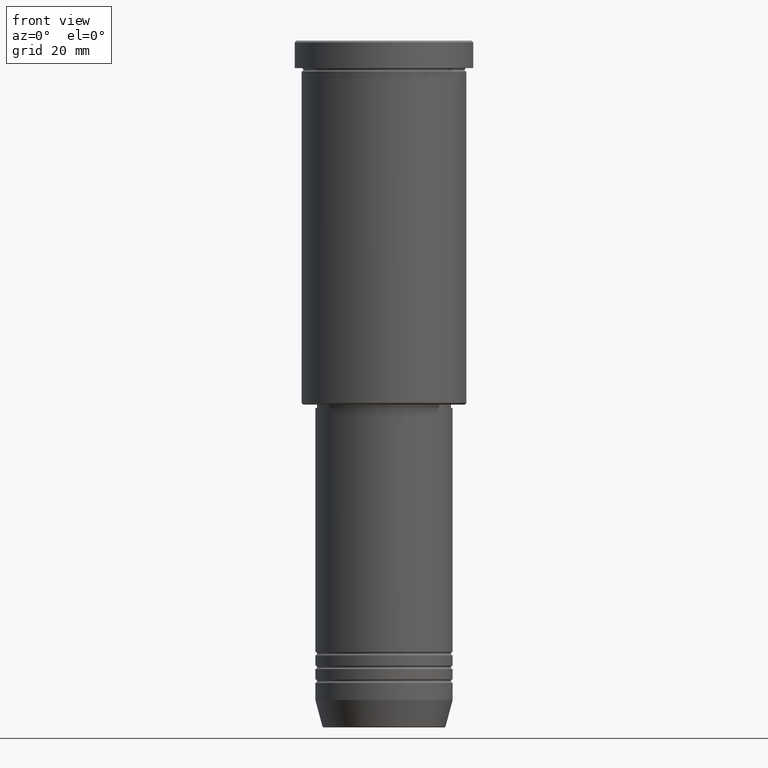
[diagram: clean part render]
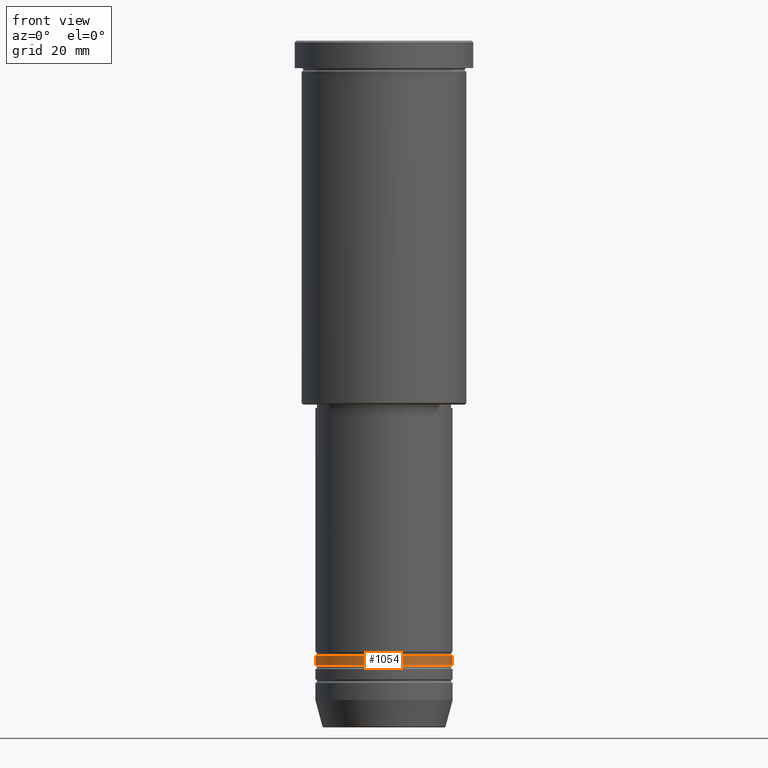
[diagram: same view with one face highlighted and labeled with its STEP entity id]
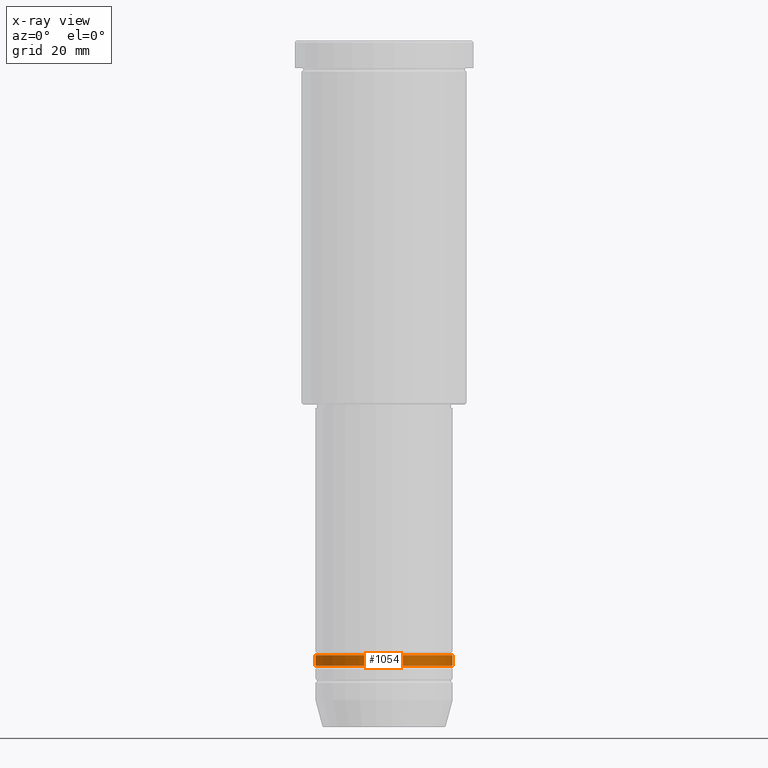
[diagram: x-ray of the same camera — body ghosted, the highlighted face saturated]
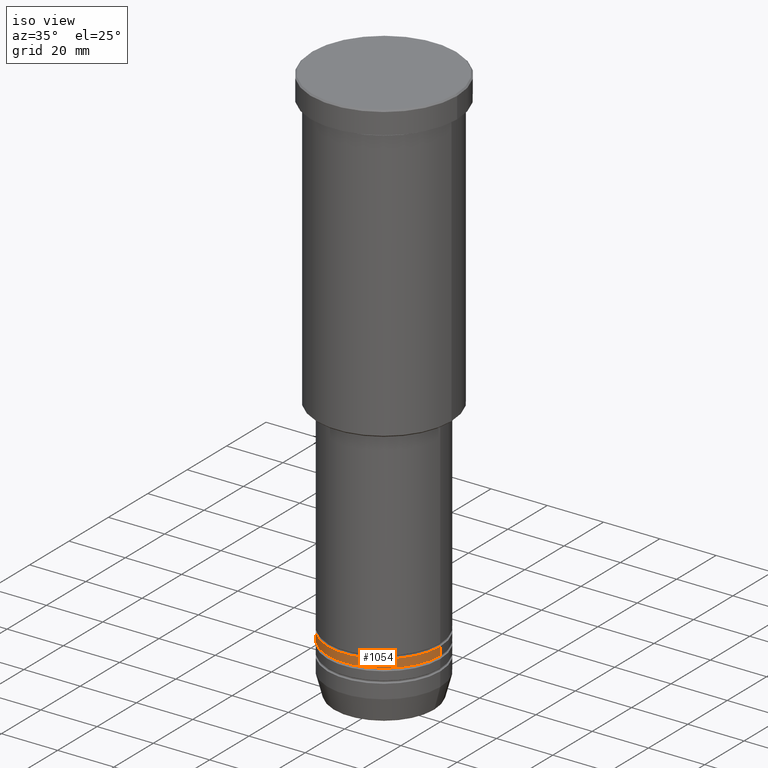
[diagram: same view with one face highlighted and labeled with its STEP entity id]
A machine part, front view. The second image highlights one B-rep face of the part: STEP entity #1054.
The next image is the same camera in x-ray: the body ghosted, the highlighted face saturated — about 0% of this face is hidden behind the body in this view.
A second angle (iso view) of the same face is appended — the face is thin or edge-on in the first view.
In plain terms, the highlighted cylindrical surface (partial cylindrical patch) has radius 20 mm, axis along (-0, -0, 1).
Its self-contained STEP definition (entity closure, byte-faithful):
#35 = EDGE_CURVE ( 'NONE', #891, #367, #899, .T. ) ;
#89 = LINE ( 'NONE', #287, #664 ) ;
#135 = AXIS2_PLACEMENT_3D ( 'NONE', #674, #1028, #210 ) ;
#210 = DIRECTION ( 'NONE',  ( 1.000000000000000000, 0.000000000000000000, 0.000000000000000000 ) ) ;
#219 = EDGE_CURVE ( 'NONE', #660, #873, #716, .T. ) ;
#226 = DIRECTION ( 'NONE',  ( 1.000000000000000000, 0.000000000000000000, 0.000000000000000000 ) ) ;
#285 = EDGE_CURVE ( 'NONE', #891, #660, #984, .T. ) ;
#287 = CARTESIAN_POINT ( 'NONE',  ( 20.00000000000000355, 0.000000000000000000, 0.000000000000000000 ) ) ;
#367 = VERTEX_POINT ( 'NONE', #754 ) ;
#436 = ORIENTED_EDGE ( 'NONE', *, *, #285, .F. ) ;
#447 = AXIS2_PLACEMENT_3D ( 'NONE', #878, #687, #869 ) ;
#474 = ORIENTED_EDGE ( 'NONE', *, *, #35, .T. ) ;
#480 = CARTESIAN_POINT ( 'NONE',  ( 20.00000000000000000, 0.000000000000000000, -179.0000000000000284 ) ) ;
#484 = CARTESIAN_POINT ( 'NONE',  ( -20.00000000000000355, 2.449293598294706907E-15, -182.0000000000000284 ) ) ;
#660 = VERTEX_POINT ( 'NONE', #733 ) ;
#664 = VECTOR ( 'NONE', #769, 1000.000000000000000 ) ;
#674 = CARTESIAN_POINT ( 'NONE',  ( 0.000000000000000000, 0.000000000000000000, -182.0000000000000284 ) ) ;
#684 = FACE_OUTER_BOUND ( 'NONE', #820, .T. ) ;
#687 = DIRECTION ( 'NONE',  ( -0.000000000000000000, -0.000000000000000000, 1.000000000000000000 ) ) ;
#716 = CIRCLE ( 'NONE', #447, 20.00000000000000000 ) ;
#733 = CARTESIAN_POINT ( 'NONE',  ( -20.00000000000000000, 2.449293598294706513E-15, -179.0000000000000284 ) ) ;
#734 = ORIENTED_EDGE ( 'NONE', *, *, #219, .F. ) ;
#754 = CARTESIAN_POINT ( 'NONE',  ( 20.00000000000000355, 0.000000000000000000, -182.0000000000000284 ) ) ;
#769 = DIRECTION ( 'NONE',  ( -0.000000000000000000, -0.000000000000000000, 1.000000000000000000 ) ) ;
#803 = CYLINDRICAL_SURFACE ( 'NONE', #1012, 20.00000000000000355 ) ;
#810 = EDGE_CURVE ( 'NONE', #367, #873, #89, .T. ) ;
#811 = CARTESIAN_POINT ( 'NONE',  ( -20.00000000000000355, 2.449293598294706907E-15, 0.000000000000000000 ) ) ;
#820 = EDGE_LOOP ( 'NONE', ( #436, #474, #1074, #734 ) ) ;
#869 = DIRECTION ( 'NONE',  ( 1.000000000000000000, 0.000000000000000000, 0.000000000000000000 ) ) ;
#873 = VERTEX_POINT ( 'NONE', #480 ) ;
#878 = CARTESIAN_POINT ( 'NONE',  ( 0.000000000000000000, 0.000000000000000000, -179.0000000000000284 ) ) ;
#891 = VERTEX_POINT ( 'NONE', #484 ) ;
#899 = CIRCLE ( 'NONE', #135, 20.00000000000000355 ) ;
#984 = LINE ( 'NONE', #811, #1032 ) ;
#1012 = AXIS2_PLACEMENT_3D ( 'NONE', #1162, #1047, #226 ) ;
#1028 = DIRECTION ( 'NONE',  ( -0.000000000000000000, -0.000000000000000000, 1.000000000000000000 ) ) ;
#1032 = VECTOR ( 'NONE', #1079, 1000.000000000000000 ) ;
#1047 = DIRECTION ( 'NONE',  ( -0.000000000000000000, -0.000000000000000000, 1.000000000000000000 ) ) ;
#1054 = ADVANCED_FACE ( 'NONE', ( #684 ), #803, .T. ) ;
#1074 = ORIENTED_EDGE ( 'NONE', *, *, #810, .T. ) ;
#1079 = DIRECTION ( 'NONE',  ( -0.000000000000000000, -0.000000000000000000, 1.000000000000000000 ) ) ;
#1162 = CARTESIAN_POINT ( 'NONE',  ( 0.000000000000000000, 0.000000000000000000, 0.000000000000000000 ) ) ;